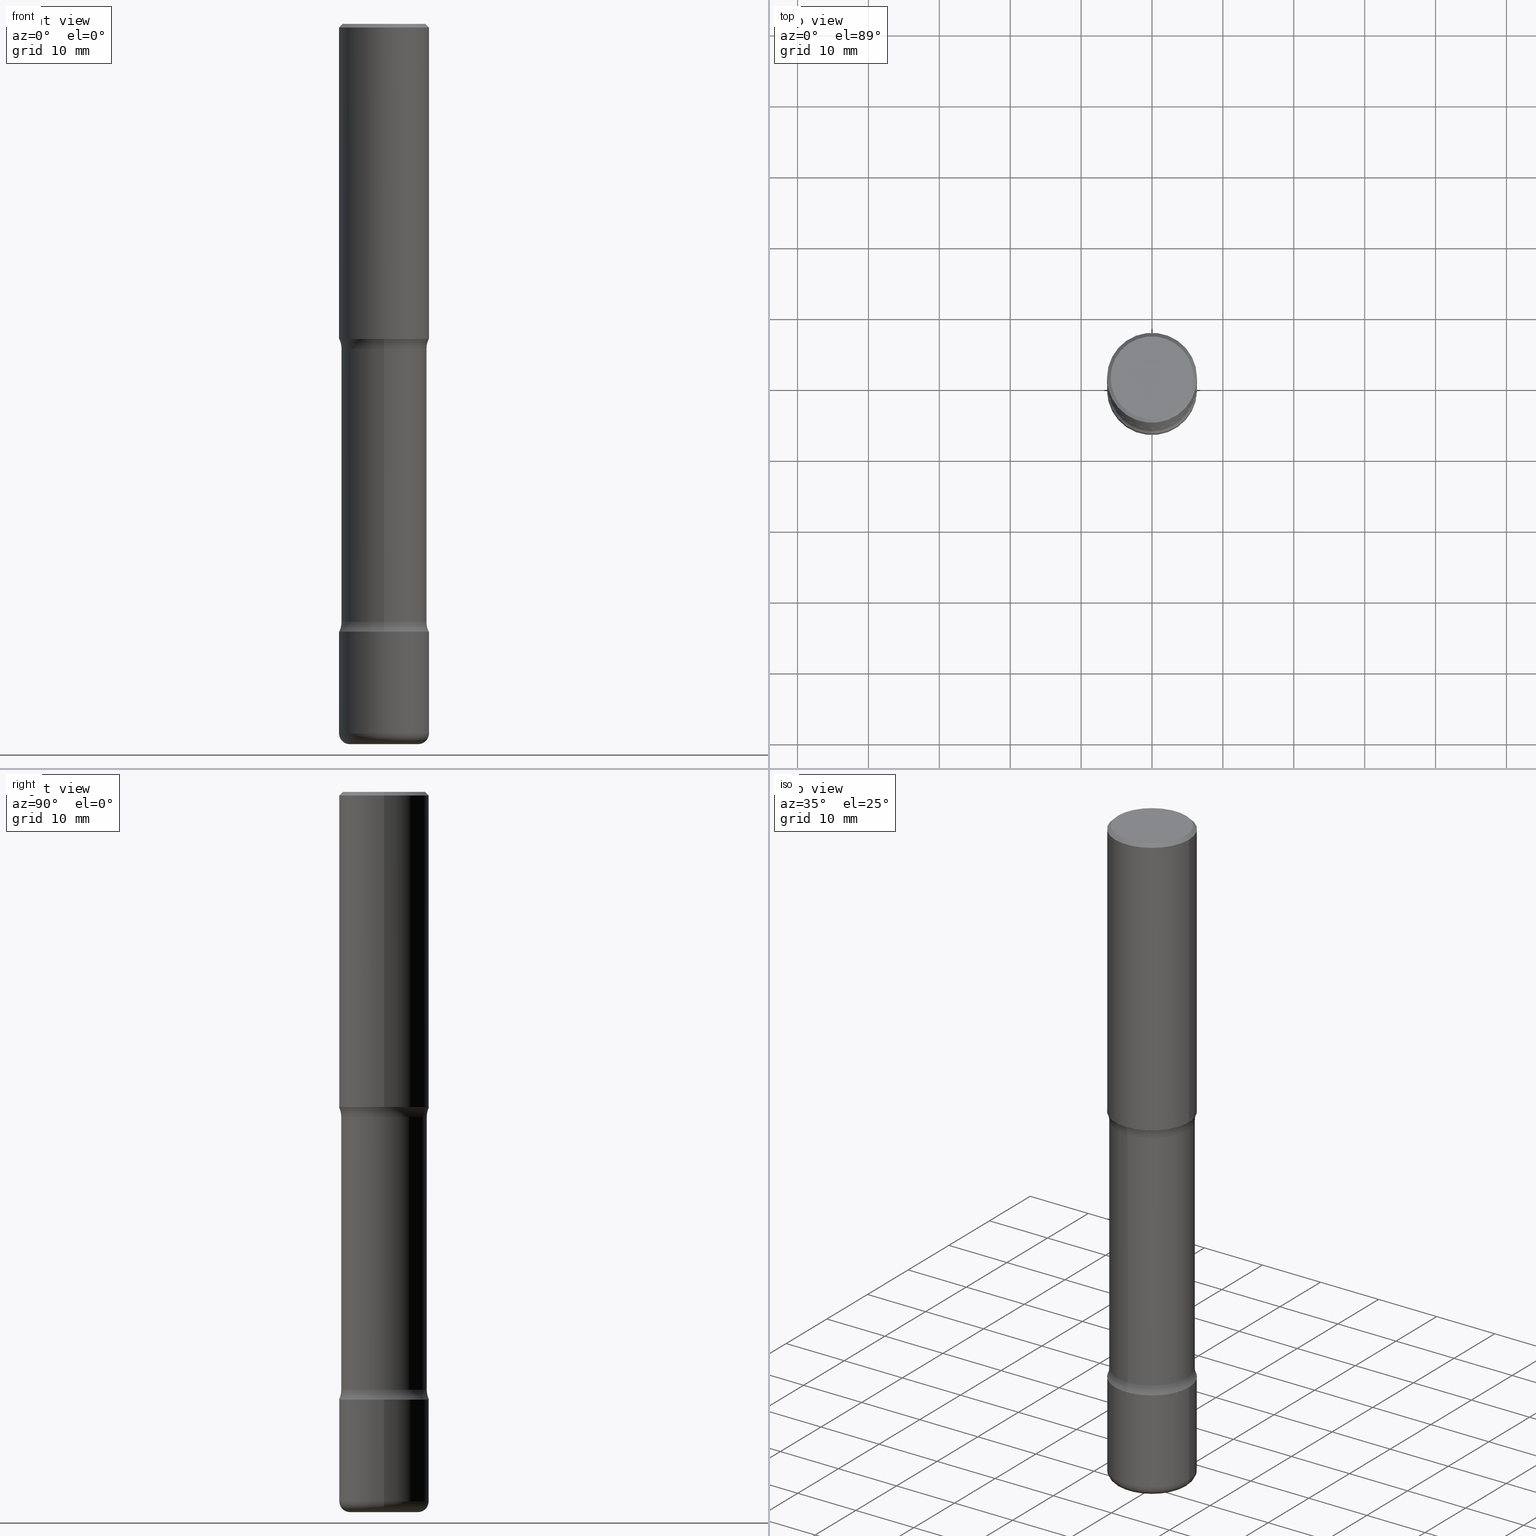
[diagram: canonical four-view strip — front | top / right | iso, engineering-drawing reading convention]
A machine part, canonical four-view strip (front | top / right | iso — engineering-drawing reading convention). The complete STEP part file that produces these views, byte-faithful:
ISO-10303-21;
HEADER;
FILE_DESCRIPTION (( 'STEP AP203' ),
    '1' );
FILE_NAME ('35182.STEP',
    '2024-03-01T23:19:19',
    ( '' ),
    ( '' ),
    'SwSTEP 2.0',
    'SolidWorks 2023',
    '' );
FILE_SCHEMA (( 'CONFIG_CONTROL_DESIGN' ));
ENDSEC;

DATA;
#1 = EDGE_LOOP ( 'NONE', ( #58, #406, #52, #303 ) ) ;
#2 = EDGE_CURVE ( 'NONE', #375, #132, #36, .T. ) ;
#3 = DIRECTION ( 'NONE',  ( -0.7071067811865476838, 2.468850131082258638E-15, -0.7071067811865473507 ) ) ;
#4 = AXIS2_PLACEMENT_3D ( 'NONE', #326, #315, #224 ) ;
#5 = AXIS2_PLACEMENT_3D ( 'NONE', #47, #439, #87 ) ;
#6 = EDGE_LOOP ( 'NONE', ( #139, #399 ) ) ;
#7 = ADVANCED_FACE ( 'NONE', ( #347 ), #184, .T. ) ;
#8 = ORIENTED_EDGE ( 'NONE', *, *, #2, .T. ) ;
#9 = EDGE_CURVE ( 'NONE', #449, #11, #533, .T. ) ;
#10 = FACE_OUTER_BOUND ( 'NONE', #18, .T. ) ;
#11 = VERTEX_POINT ( 'NONE', #395 ) ;
#12 = FACE_OUTER_BOUND ( 'NONE', #306, .T. ) ;
#13 = CIRCLE ( 'NONE', #78, 0.05999999999999994227 ) ;
#14 = DATE_TIME_ROLE ( 'classification_date' ) ;
#15 = DIRECTION ( 'NONE',  ( 2.172837969221398724E-29, -3.881904214558802973E-15, -1.000000000000000000 ) ) ;
#16 = APPROVAL_DATE_TIME ( #97, #194 ) ;
#17 = DIRECTION ( 'NONE',  ( 2.172837969221398724E-29, -3.881904214558802973E-15, -1.000000000000000000 ) ) ;
#18 = EDGE_LOOP ( 'NONE', ( #265, #54 ) ) ;
#19 = DIRECTION ( 'NONE',  ( -1.000000000000000000, 7.105427357600997914E-15, 0.000000000000000000 ) ) ;
#20 = DIRECTION ( 'NONE',  ( 1.000000000000000000, -6.982962677686266711E-15, 4.876176775795935793E-29 ) ) ;
#21 = APPROVAL ( #82, 'UNSPECIFIED' ) ;
#22 = EDGE_LOOP ( 'NONE', ( #46, #85 ) ) ;
#23 = ORIENTED_EDGE ( 'NONE', *, *, #57, .T. ) ;
#24 = AXIS2_PLACEMENT_3D ( 'NONE', #441, #59, #19 ) ;
#25 = VECTOR ( 'NONE', #259, 39.37007874015748143 ) ;
#26 = LINE ( 'NONE', #497, #534 ) ;
#27 = FACE_OUTER_BOUND ( 'NONE', #22, .T. ) ;
#28 = DIRECTION ( 'NONE',  ( 6.982962677686265922E-15, 1.000000000000000000, -3.881904214558802973E-15 ) ) ;
#29 = AXIS2_PLACEMENT_3D ( 'NONE', #456, #112, #378 ) ;
#30 = CIRCLE ( 'NONE', #280, 0.2374999999999999611 ) ;
#31 = DIRECTION ( 'NONE',  ( -1.000000000000000000, 6.982962677686265922E-15, -4.883557194083112901E-29 ) ) ;
#32 = DIRECTION ( 'NONE',  ( 2.172837969221398724E-29, -3.881904214558802973E-15, -1.000000000000000000 ) ) ;
#33 = CARTESIAN_POINT ( 'NONE',  ( 0.1900000000000001132, -1.529268826413297395E-14, -4.000000000000000000 ) ) ;
#34 = EDGE_CURVE ( 'NONE', #449, #313, #264, .T. ) ;
#35 = CARTESIAN_POINT ( 'NONE',  ( 9.635147096369438236E-29, -1.375643647504199401E-14, -3.939999999999999947 ) ) ;
#36 = CIRCLE ( 'NONE', #124, 0.2499999999999996114 ) ;
#37 = ORIENTED_EDGE ( 'NONE', *, *, #422, .F. ) ;
#38 =( NAMED_UNIT ( * ) SI_UNIT ( $, .STERADIAN. ) SOLID_ANGLE_UNIT ( ) );
#39 = VERTEX_POINT ( 'NONE', #61 ) ;
#40 = FACE_OUTER_BOUND ( 'NONE', #411, .T. ) ;
#41 = ORIENTED_EDGE ( 'NONE', *, *, #362, .F. ) ;
#42 = ADVANCED_FACE ( 'NONE', ( #231 ), #433, .F. ) ;
#43 = FACE_OUTER_BOUND ( 'NONE', #426, .T. ) ;
#44 = CIRCLE ( 'NONE', #363, 0.1250000000000001388 ) ;
#45 = LOCAL_TIME ( 18, 19, 19.00000000000000000, #216 ) ;
#46 = ORIENTED_EDGE ( 'NONE', *, *, #116, .T. ) ;
#47 = CARTESIAN_POINT ( 'NONE',  ( 1.606081415867838306E-15, 0.2299999999999995937, -7.966379391987714714E-16 ) ) ;
#48 = VERTEX_POINT ( 'NONE', #410 ) ;
#49 = ADVANCED_FACE ( 'NONE', ( #145 ), #228, .T. ) ;
#50 = DIRECTION ( 'NONE',  ( 1.000000000000000000, -6.982962677686269077E-15, 4.883557194083113462E-29 ) ) ;
#51 = CARTESIAN_POINT ( 'NONE',  ( -1.629368274470639626E-15, -0.2375000000000137834, -3.999999999999998668 ) ) ;
#52 = ORIENTED_EDGE ( 'NONE', *, *, #495, .F. ) ;
#53 = CARTESIAN_POINT ( 'NONE',  ( 4.279570410823987923E-29, -6.110092342975502304E-15, -1.749999999999999334 ) ) ;
#54 = ORIENTED_EDGE ( 'NONE', *, *, #544, .F. ) ;
#55 = AXIS2_PLACEMENT_3D ( 'NONE', #183, #356, #448 ) ;
#56 = CONICAL_SURFACE ( 'NONE', #481, 0.2499999999999996114, 0.7853981633974485010 ) ;
#57 = EDGE_CURVE ( 'NONE', #105, #48, #453, .T. ) ;
#58 = ORIENTED_EDGE ( 'NONE', *, *, #446, .T. ) ;
#59 = DIRECTION ( 'NONE',  ( 7.105427357601001859E-15, 1.000000000000000000, -3.491481338843145583E-15 ) ) ;
#60 = VERTEX_POINT ( 'NONE', #498 ) ;
#61 = CARTESIAN_POINT ( 'NONE',  ( 0.2500000000000000000, -7.855833012397068982E-15, -1.749999999999999334 ) ) ;
#62 = CARTESIAN_POINT ( 'NONE',  ( -1.715124499442830629E-15, -0.2500000000000047184, -1.749999999999998446 ) ) ;
#63 = CARTESIAN_POINT ( 'NONE',  ( 9.781875224740546387E-29, -1.396592535537258233E-14, -4.000000000000000000 ) ) ;
#64 = TOROIDAL_SURFACE ( 'NONE', #193, 0.3625000000000000444, 0.1250000000000001388 ) ;
#65 = AXIS2_PLACEMENT_3D ( 'NONE', #548, #114, #417 ) ;
#66 = ADVANCED_FACE ( 'NONE', ( #359 ), #173, .F. ) ;
#67 = DIRECTION ( 'NONE',  ( -2.445468806185136597E-29, 3.491481338843145583E-15, 1.000000000000000000 ) ) ;
#68 = DIRECTION ( 'NONE',  ( -1.000000000000000000, 6.982962677686265922E-15, -4.883557194083112901E-29 ) ) ;
#69 = DIRECTION ( 'NONE',  ( 2.172837969221398163E-29, -3.881904214558802973E-15, -1.000000000000000000 ) ) ;
#70 = CARTESIAN_POINT ( 'NONE',  ( 4.722595520890061897E-29, -5.475655169937558897E-15, -1.749999999999999334 ) ) ;
#71 = FACE_OUTER_BOUND ( 'NONE', #325, .T. ) ;
#72 = CIRCLE ( 'NONE', #388, 0.2500000000000000000 ) ;
#73 = AXIS2_PLACEMENT_3D ( 'NONE', #427, #208, #384 ) ;
#74 = CARTESIAN_POINT ( 'NONE',  ( -0.1900000000000001132, -1.229798689653506716E-14, -4.000000000000000000 ) ) ;
#75 = ORIENTED_EDGE ( 'NONE', *, *, #334, .F. ) ;
#76 = LENGTH_MEASURE_WITH_UNIT ( LENGTH_MEASURE( 0.02539999999999999897 ), #309 );
#77 = ADVANCED_FACE ( 'NONE', ( #274 ), #64, .F. ) ;
#78 = AXIS2_PLACEMENT_3D ( 'NONE', #418, #376, #240 ) ;
#79 = CIRCLE ( 'NONE', #345, 0.1900000000000001132 ) ;
#80 = PRODUCT_DEFINITION_SHAPE ( 'NONE', 'NONE',  #465 ) ;
#81 = EDGE_LOOP ( 'NONE', ( #210, #126, #527, #476 ) ) ;
#82 = APPROVAL_STATUS ( 'not_yet_approved' ) ;
#83 = CARTESIAN_POINT ( 'NONE',  ( 0.2500000000000000555, -1.745740669421567269E-15, 1.219044193948984228E-29 ) ) ;
#84 = EDGE_CURVE ( 'NONE', #166, #188, #278, .T. ) ;
#85 = ORIENTED_EDGE ( 'NONE', *, *, #291, .T. ) ;
#86 =( NAMED_UNIT ( * ) PLANE_ANGLE_UNIT ( ) SI_UNIT ( $, .RADIAN. ) );
#87 = DIRECTION ( 'NONE',  ( -1.000000000000000000, 6.982962677686265922E-15, -4.876176775795935793E-29 ) ) ;
#88 = ORIENTED_EDGE ( 'NONE', *, *, #143, .F. ) ;
#89 = CARTESIAN_POINT ( 'NONE',  ( 3.102831224040029093E-29, -1.915973910148912659E-14, -3.375000000000000000 ) ) ;
#90 = DIRECTION ( 'NONE',  ( 2.438088387897960049E-29, -3.491481338843145188E-15, -1.000000000000000000 ) ) ;
#91 = CIRCLE ( 'NONE', #479, 0.2500000000000000000 ) ;
#92 = ORIENTED_EDGE ( 'NONE', *, *, #544, .T. ) ;
#93 = CC_DESIGN_DATE_AND_TIME_ASSIGNMENT ( #397, #14, ( #443 ) ) ;
#94 = ADVANCED_BREP_SHAPE_REPRESENTATION ( '35182', ( #474, #293, #471, #73 ), #461 ) ;
#95 = PLANE ( 'NONE',  #492 ) ;
#96 = ORIENTED_EDGE ( 'NONE', *, *, #230, .T. ) ;
#97 = DATE_AND_TIME ( #137, #241 ) ;
#98 = PLANE ( 'NONE',  #185 ) ;
#99 = ORIENTED_EDGE ( 'NONE', *, *, #242, .T. ) ;
#100 = DIRECTION ( 'NONE',  ( -2.445468806185136597E-29, 3.491481338843145583E-15, 1.000000000000000000 ) ) ;
#101 = PLANE ( 'NONE',  #402 ) ;
#102 = ADVANCED_FACE ( 'NONE', ( #140 ), #487, .T. ) ;
#103 = VECTOR ( 'NONE', #333, 39.37007874015748143 ) ;
#104 = CIRCLE ( 'NONE', #203, 0.1250000000000000278 ) ;
#105 = VERTEX_POINT ( 'NONE', #405 ) ;
#106 = DIRECTION ( 'NONE',  ( 1.000000000000000000, -6.982962677686266711E-15, 4.875813741439108182E-29 ) ) ;
#107 = ORIENTED_EDGE ( 'NONE', *, *, #393, .F. ) ;
#108 = DIRECTION ( 'NONE',  ( 2.172837969221398724E-29, -3.881904214558802973E-15, -1.000000000000000000 ) ) ;
#109 = AXIS2_PLACEMENT_3D ( 'NONE', #447, #100, #267 ) ;
#110 = AXIS2_PLACEMENT_3D ( 'NONE', #111, #31, #355 ) ;
#111 = CARTESIAN_POINT ( 'NONE',  ( 2.531323970661315070E-15, 0.3624999999999936051, -1.804486236794259124 ) ) ;
#112 = DIRECTION ( 'NONE',  ( -2.445468806185136597E-29, 3.491481338843145583E-15, 1.000000000000000000 ) ) ;
#113 = EDGE_CURVE ( 'NONE', #166, #217, #423, .T. ) ;
#114 = DIRECTION ( 'NONE',  ( -2.445468806185136597E-29, 3.491481338843145583E-15, 1.000000000000000000 ) ) ;
#115 = DIRECTION ( 'NONE',  ( -2.445468806185136877E-29, 3.491481338843145188E-15, 1.000000000000000000 ) ) ;
#116 = EDGE_CURVE ( 'NONE', #496, #348, #499, .T. ) ;
#117 = CARTESIAN_POINT ( 'NONE',  ( 8.135067456768282338E-29, -1.157223916634853388E-14, -3.320513763205740876 ) ) ;
#118 = AXIS2_PLACEMENT_3D ( 'NONE', #371, #545, #148 ) ;
#119 = AXIS2_PLACEMENT_3D ( 'NONE', #335, #331, #503 ) ;
#120 = PLANE ( 'NONE',  #118 ) ;
#121 = FACE_OUTER_BOUND ( 'NONE', #129, .T. ) ;
#122 = ORIENTED_EDGE ( 'NONE', *, *, #422, .T. ) ;
#123 = APPROVAL_STATUS ( 'not_yet_approved' ) ;
#124 = AXIS2_PLACEMENT_3D ( 'NONE', #440, #238, #551 ) ;
#125 = CC_DESIGN_APPROVAL ( #321, ( #226 ) ) ;
#126 = ORIENTED_EDGE ( 'NONE', *, *, #446, .F. ) ;
#127 = PERSON_AND_ORGANIZATION ( #421, #234 ) ;
#128 = LINE ( 'NONE', #485, #312 ) ;
#129 = EDGE_LOOP ( 'NONE', ( #381, #96, #204, #159 ) ) ;
#130 = PERSON_AND_ORGANIZATION ( #421, #234 ) ;
#131 = CARTESIAN_POINT ( 'NONE',  ( 0.2500000000000000000, -1.352949018801718119E-14, -3.375000000000000000 ) ) ;
#132 = VERTEX_POINT ( 'NONE', #502 ) ;
#133 = PERSON_AND_ORGANIZATION_ROLE ( 'classification_officer' ) ;
#134 = DIRECTION ( 'NONE',  ( 1.000000000000000000, -6.860497997771530774E-15, 4.836017578373552280E-29 ) ) ;
#135 = DIRECTION ( 'NONE',  ( -2.445468806185136597E-29, 3.491481338843145583E-15, 1.000000000000000000 ) ) ;
#136 = CIRCLE ( 'NONE', #546, 0.2500000000000000000 ) ;
#137 = CALENDAR_DATE ( 2024, 1, 3 ) ;
#138 = CARTESIAN_POINT ( 'NONE',  ( -1.672246386956758004E-15, -0.2375000000000049849, -1.804486236794257126 ) ) ;
#139 = ORIENTED_EDGE ( 'NONE', *, *, #458, .F. ) ;
#140 = FACE_OUTER_BOUND ( 'NONE', #396, .T. ) ;
#141 = CARTESIAN_POINT ( 'NONE',  ( 4.890937612370273159E-31, -6.982962677686291609E-17, -0.02000000000000000042 ) ) ;
#142 = DIRECTION ( 'NONE',  ( 6.982962677686265922E-15, 1.000000000000000000, -4.370956789862821150E-15 ) ) ;
#143 = EDGE_CURVE ( 'NONE', #532, #536, #136, .T. ) ;
#144 = AXIS2_PLACEMENT_3D ( 'NONE', #235, #191, #370 ) ;
#145 = FACE_OUTER_BOUND ( 'NONE', #1, .T. ) ;
#146 = ADVANCED_FACE ( 'NONE', ( #243 ), #286, .T. ) ;
#147 = DIRECTION ( 'NONE',  ( 1.000000000000000000, -6.982962677686267499E-15, 0.000000000000000000 ) ) ;
#148 = DIRECTION ( 'NONE',  ( -6.982962677686265922E-15, -1.000000000000000000, 3.881904214558802973E-15 ) ) ;
#149 = VECTOR ( 'NONE', #115, 39.37007874015748143 ) ;
#150 = DIRECTION ( 'NONE',  ( 6.982962677686265922E-15, 1.000000000000000000, -4.370956789862821150E-15 ) ) ;
#151 = DATE_AND_TIME ( #560, #165 ) ;
#152 = EDGE_CURVE ( 'NONE', #132, #375, #270, .T. ) ;
#153 = DIMENSIONAL_EXPONENTS ( 1.000000000000000000, 0.000000000000000000, 0.000000000000000000, 0.000000000000000000, 0.000000000000000000, 0.000000000000000000, 0.000000000000000000 ) ;
#154 = CARTESIAN_POINT ( 'NONE',  ( 4.890937612370273159E-31, -6.982962677686291609E-17, -0.02000000000000000042 ) ) ;
#155 = CARTESIAN_POINT ( 'NONE',  ( -0.2500000000000001110, -1.198007963564174355E-14, -3.939999999999999947 ) ) ;
#156 = AXIS2_PLACEMENT_3D ( 'NONE', #436, #263, #213 ) ;
#157 = CYLINDRICAL_SURFACE ( 'NONE', #212, 0.2500000000000000555 ) ;
#158 = PERSON_AND_ORGANIZATION ( #421, #234 ) ;
#159 = ORIENTED_EDGE ( 'NONE', *, *, #253, .F. ) ;
#160 = EDGE_LOOP ( 'NONE', ( #107, #486 ) ) ;
#161 = EDGE_CURVE ( 'NONE', #188, #437, #13, .T. ) ;
#162 = CALENDAR_DATE ( 2024, 1, 3 ) ;
#163 = CIRCLE ( 'NONE', #196, 0.2500000000000001110 ) ;
#164 = DIRECTION ( 'NONE',  ( -2.438088387897960049E-29, 3.491481338843145188E-15, 1.000000000000000000 ) ) ;
#165 = LOCAL_TIME ( 18, 19, 19.00000000000000000, #340 ) ;
#166 = VERTEX_POINT ( 'NONE', #74 ) ;
#167 = DIRECTION ( 'NONE',  ( 2.172837969221398724E-29, -3.881904214558802973E-15, -1.000000000000000000 ) ) ;
#168 = ORIENTED_EDGE ( 'NONE', *, *, #34, .F. ) ;
#169 = DIRECTION ( 'NONE',  ( 2.438088387897960049E-29, -3.491481338843145188E-15, -1.000000000000000000 ) ) ;
#170 = CARTESIAN_POINT ( 'NONE',  ( 1.745740669421649114E-15, 0.2499999999999882594, -3.375000000000000888 ) ) ;
#171 = ORIENTED_EDGE ( 'NONE', *, *, #175, .T. ) ;
#172 = FACE_OUTER_BOUND ( 'NONE', #6, .T. ) ;
#173 = TOROIDAL_SURFACE ( 'NONE', #310, 0.3624999999999992673, 0.1250000000000000278 ) ;
#174 = AXIS2_PLACEMENT_3D ( 'NONE', #256, #525, #431 ) ;
#175 = EDGE_CURVE ( 'NONE', #437, #217, #299, .T. ) ;
#176 = COORDINATED_UNIVERSAL_TIME_OFFSET ( 5, 0, .BEHIND. ) ;
#177 = CARTESIAN_POINT ( 'NONE',  ( -3.131554243005659264E-46, 4.471029511141341874E-32, 1.280553747030123384E-17 ) ) ;
#178 = LINE ( 'NONE', #307, #322 ) ;
#179 = APPLICATION_CONTEXT ( 'configuration controlled 3d designs of mechanical parts and assemblies' ) ;
#180 = ORIENTED_EDGE ( 'NONE', *, *, #113, .T. ) ;
#181 = CARTESIAN_POINT ( 'NONE',  ( 8.253457220874836014E-29, -1.178374951859561452E-14, -3.375000000000000000 ) ) ;
#182 = EDGE_CURVE ( 'NONE', #39, #375, #511, .T. ) ;
#183 = CARTESIAN_POINT ( 'NONE',  ( 4.840985284996614452E-29, -5.687165522184640323E-15, -1.804486236794258014 ) ) ;
#184 = CYLINDRICAL_SURFACE ( 'NONE', #467, 0.2499999999999998057 ) ;
#185 = AXIS2_PLACEMENT_3D ( 'NONE', #53, #164, #482 ) ;
#186 = APPROVAL_STATUS ( 'not_yet_approved' ) ;
#187 = CC_DESIGN_PERSON_AND_ORGANIZATION_ASSIGNMENT ( #528, #484, ( #226 ) ) ;
#188 = VERTEX_POINT ( 'NONE', #33 ) ;
#189 = DIRECTION ( 'NONE',  ( 6.982962677686265922E-15, 1.000000000000000000, -3.881904214558802973E-15 ) ) ;
#190 = COORDINATED_UNIVERSAL_TIME_OFFSET ( 5, 0, .BEHIND. ) ;
#191 = DIRECTION ( 'NONE',  ( 2.172837969221398724E-29, -3.881904214558802973E-15, -1.000000000000000000 ) ) ;
#192 = DIRECTION ( 'NONE',  ( 6.860497997771529985E-15, 1.000000000000000000, 0.000000000000000000 ) ) ;
#193 = AXIS2_PLACEMENT_3D ( 'NONE', #318, #451, #369 ) ;
#194 = APPROVAL ( #186, 'UNSPECIFIED' ) ;
#195 = CARTESIAN_POINT ( 'NONE',  ( -1.672246386956728816E-15, -0.2375000000000115352, -3.320513763205739988 ) ) ;
#196 = AXIS2_PLACEMENT_3D ( 'NONE', #35, #67, #557 ) ;
#197 = LOCAL_TIME ( 18, 19, 19.00000000000000000, #220 ) ;
#198 = DIRECTION ( 'NONE',  ( -6.982962677686266711E-15, -1.000000000000000000, 0.000000000000000000 ) ) ;
#199 = CARTESIAN_POINT ( 'NONE',  ( 0.000000000000000000, 0.000000000000000000, 0.000000000000000000 ) ) ;
#200 = DIRECTION ( 'NONE',  ( 1.000000000000000000, -6.982962677686267499E-15, 0.000000000000000000 ) ) ;
#201 = DIRECTION ( 'NONE',  ( 6.982962677686265133E-15, 1.000000000000000000, -4.601007147224022844E-15 ) ) ;
#202 = AXIS2_PLACEMENT_3D ( 'NONE', #328, #15, #494 ) ;
#203 = AXIS2_PLACEMENT_3D ( 'NONE', #529, #134, #296 ) ;
#204 = ORIENTED_EDGE ( 'NONE', *, *, #542, .T. ) ;
#205 = APPLICATION_PROTOCOL_DEFINITION ( 'international standard', 'config_control_design', 1994, #290 ) ;
#206 = ADVANCED_FACE ( 'NONE', ( #121 ), #505, .T. ) ;
#207 = ORIENTED_EDGE ( 'NONE', *, *, #57, .F. ) ;
#208 = DIRECTION ( 'NONE',  ( 0.000000000000000000, 0.000000000000000000, 1.000000000000000000 ) ) ;
#209 = DIRECTION ( 'NONE',  ( 6.982962677686266711E-15, 1.000000000000000000, -4.601007147224030733E-15 ) ) ;
#210 = ORIENTED_EDGE ( 'NONE', *, *, #558, .F. ) ;
#211 = CC_DESIGN_PERSON_AND_ORGANIZATION_ASSIGNMENT ( #298, #223, ( #226 ) ) ;
#212 = AXIS2_PLACEMENT_3D ( 'NONE', #199, #287, #552 ) ;
#213 = DIRECTION ( 'NONE',  ( 6.982962677686266711E-15, 1.000000000000000000, -3.450755360418027783E-15 ) ) ;
#214 = APPROVAL_PERSON_ORGANIZATION ( #289, #321, #514 ) ;
#215 = ORIENTED_EDGE ( 'NONE', *, *, #152, .F. ) ;
#216 = COORDINATED_UNIVERSAL_TIME_OFFSET ( 5, 0, .BEHIND. ) ;
#217 = VERTEX_POINT ( 'NONE', #155 ) ;
#218 = CARTESIAN_POINT ( 'NONE',  ( 9.781875224740546387E-29, -1.396592535537258233E-14, -4.000000000000000000 ) ) ;
#219 = EDGE_LOOP ( 'NONE', ( #229, #466, #261, #445 ) ) ;
#220 = COORDINATED_UNIVERSAL_TIME_OFFSET ( 5, 0, .BEHIND. ) ;
#221 = DIRECTION ( 'NONE',  ( 1.000000000000000000, -6.982962677686266711E-15, 0.000000000000000000 ) ) ;
#222 = EDGE_LOOP ( 'NONE', ( #522, #493, #99, #41 ) ) ;
#223 = PERSON_AND_ORGANIZATION_ROLE ( 'design_supplier' ) ;
#224 = DIRECTION ( 'NONE',  ( 6.982962677686266711E-15, 1.000000000000000000, -4.601007147224030733E-15 ) ) ;
#225 = CARTESIAN_POINT ( 'NONE',  ( 8.135067456768282338E-29, -1.157223916634853388E-14, -3.320513763205740876 ) ) ;
#226 = PRODUCT_DEFINITION_FORMATION_WITH_SPECIFIED_SOURCE ( 'ANY', '', #249, .NOT_KNOWN. ) ;
#227 = EDGE_LOOP ( 'NONE', ( #254, #351, #273, #539 ) ) ;
#228 = CYLINDRICAL_SURFACE ( 'NONE', #4, 0.2374999999999995726 ) ;
#229 = ORIENTED_EDGE ( 'NONE', *, *, #113, .F. ) ;
#230 = EDGE_CURVE ( 'NONE', #217, #437, #163, .T. ) ;
#231 = FACE_OUTER_BOUND ( 'NONE', #222, .T. ) ;
#232 = AXIS2_PLACEMENT_3D ( 'NONE', #457, #69, #28 ) ;
#233 = EDGE_LOOP ( 'NONE', ( #483, #490, #297, #517 ) ) ;
#234 = ORGANIZATION ( 'UNSPECIFIED', 'UNSPECIFIED', '' ) ;
#235 = CARTESIAN_POINT ( 'NONE',  ( 4.722595520890061897E-29, -5.475655169937558897E-15, -1.749999999999999334 ) ) ;
#236 = DIRECTION ( 'NONE',  ( 1.000000000000000000, -6.860497997771530774E-15, 4.836017578373552280E-29 ) ) ;
#237 = CARTESIAN_POINT ( 'NONE',  ( 1.658453635950569005E-15, 0.2374999999999883871, -3.320513763205742208 ) ) ;
#238 = DIRECTION ( 'NONE',  ( -2.445468806185136597E-29, 3.491481338843145583E-15, 1.000000000000000000 ) ) ;
#239 = AXIS2_PLACEMENT_3D ( 'NONE', #181, #540, #142 ) ;
#240 = DIRECTION ( 'NONE',  ( 1.000000000000000000, -6.982962677686274599E-15, 0.000000000000000000 ) ) ;
#241 = LOCAL_TIME ( 18, 19, 19.00000000000000000, #190 ) ;
#242 = EDGE_CURVE ( 'NONE', #313, #308, #491, .T. ) ;
#243 = FACE_OUTER_BOUND ( 'NONE', #424, .T. ) ;
#244 = DIRECTION ( 'NONE',  ( -2.445468806185136597E-29, 3.491481338843145583E-15, 1.000000000000000000 ) ) ;
#245 = CC_DESIGN_DATE_AND_TIME_ASSIGNMENT ( #151, #506, ( #465 ) ) ;
#246 = EDGE_LOOP ( 'NONE', ( #361, #387, #8, #37 ) ) ;
#247 = AXIS2_PLACEMENT_3D ( 'NONE', #553, #460, #464 ) ;
#248 = CIRCLE ( 'NONE', #65, 0.2299999999999995937 ) ;
#249 = PRODUCT ( '35182', '35182', '', ( #382 ) ) ;
#250 = ORIENTED_EDGE ( 'NONE', *, *, #175, .F. ) ;
#251 = CALENDAR_DATE ( 2024, 1, 3 ) ;
#252 = DIRECTION ( 'NONE',  ( -2.445468806185136597E-29, 3.491481338843145583E-15, 1.000000000000000000 ) ) ;
#253 = EDGE_CURVE ( 'NONE', #536, #532, #72, .T. ) ;
#254 = ORIENTED_EDGE ( 'NONE', *, *, #282, .F. ) ;
#255 = SHAPE_DEFINITION_REPRESENTATION ( #80, #94 ) ;
#256 = CARTESIAN_POINT ( 'NONE',  ( 4.890937612370273159E-31, -6.982962677686291609E-17, -0.02000000000000000042 ) ) ;
#257 = ORIENTED_EDGE ( 'NONE', *, *, #9, .T. ) ;
#258 = AXIS2_PLACEMENT_3D ( 'NONE', #63, #543, #147 ) ;
#259 = DIRECTION ( 'NONE',  ( 2.172837969221398724E-29, -3.881904214558802973E-15, -1.000000000000000000 ) ) ;
#260 = AXIS2_PLACEMENT_3D ( 'NONE', #346, #314, #221 ) ;
#261 = ORIENTED_EDGE ( 'NONE', *, *, #161, .T. ) ;
#262 = PRODUCT_RELATED_PRODUCT_CATEGORY ( 'detail', '', ( #249 ) ) ;
#263 = DIRECTION ( 'NONE',  ( 2.172837969221398724E-29, -3.881904214558802973E-15, -1.000000000000000000 ) ) ;
#264 = LINE ( 'NONE', #51, #400 ) ;
#265 = ORIENTED_EDGE ( 'NONE', *, *, #452, .F. ) ;
#266 = DIRECTION ( 'NONE',  ( 1.000000000000000000, -6.982962677686267499E-15, 0.000000000000000000 ) ) ;
#267 = DIRECTION ( 'NONE',  ( 1.000000000000000000, -6.982962677686266711E-15, 4.876176775795935793E-29 ) ) ;
#268 = UNCERTAINTY_MEASURE_WITH_UNIT (LENGTH_MEASURE( 1.000000000000000082E-05 ), #390, 'distance_accuracy_value', 'NONE');
#269 = DIRECTION ( 'NONE',  ( 2.445468806185136597E-29, -3.491481338843145583E-15, -1.000000000000000000 ) ) ;
#270 = CIRCLE ( 'NONE', #442, 0.2499999999999996114 ) ;
#271 = CIRCLE ( 'NONE', #260, 0.2500000000000000000 ) ;
#272 = TOROIDAL_SURFACE ( 'NONE', #119, 0.3624999999999992673, 0.1250000000000000278 ) ;
#273 = ORIENTED_EDGE ( 'NONE', *, *, #362, .T. ) ;
#274 = FACE_OUTER_BOUND ( 'NONE', #227, .T. ) ;
#275 = ADVANCED_FACE ( 'NONE', ( #71 ), #157, .T. ) ;
#276 = ORIENTED_EDGE ( 'NONE', *, *, #542, .F. ) ;
#277 = APPROVAL_ROLE ( '' ) ;
#278 = CIRCLE ( 'NONE', #258, 0.1900000000000001132 ) ;
#279 = FACE_OUTER_BOUND ( 'NONE', #324, .T. ) ;
#280 = AXIS2_PLACEMENT_3D ( 'NONE', #225, #17, #360 ) ;
#281 = FACE_OUTER_BOUND ( 'NONE', #160, .T. ) ;
#282 = EDGE_CURVE ( 'NONE', #348, #313, #44, .T. ) ;
#283 = ADVANCED_FACE ( 'NONE', ( #27 ), #120, .F. ) ;
#284 = CARTESIAN_POINT ( 'NONE',  ( 8.253457220874836014E-29, -1.178374951859561452E-14, -3.375000000000000000 ) ) ;
#285 = DIRECTION ( 'NONE',  ( 2.172837969221398724E-29, -3.881904214558802973E-15, -1.000000000000000000 ) ) ;
#286 = TOROIDAL_SURFACE ( 'NONE', #247, 0.1900000000000001132, 0.05999999999999995615 ) ;
#287 = DIRECTION ( 'NONE',  ( -2.445468806185136597E-29, 3.491481338843145583E-15, 1.000000000000000000 ) ) ;
#288 = CIRCLE ( 'NONE', #454, 0.2500000000000000000 ) ;
#289 = PERSON_AND_ORGANIZATION ( #421, #234 ) ;
#290 = APPLICATION_CONTEXT ( 'configuration controlled 3d designs of mechanical parts and assemblies' ) ;
#291 = EDGE_CURVE ( 'NONE', #348, #496, #91, .T. ) ;
#292 = DIRECTION ( 'NONE',  ( 1.000000000000000000, -6.982962677686262766E-15, 0.000000000000000000 ) ) ;
#293 = MANIFOLD_SOLID_BREP ( 'Body-Move/Copy2[2]', #515 ) ;
#294 = ORIENTED_EDGE ( 'NONE', *, *, #253, .T. ) ;
#295 = PERSON_AND_ORGANIZATION_ROLE ( 'creator' ) ;
#296 = DIRECTION ( 'NONE',  ( 6.860497997771529985E-15, 1.000000000000000000, 0.000000000000000000 ) ) ;
#297 = ORIENTED_EDGE ( 'NONE', *, *, #2, .F. ) ;
#298 = PERSON_AND_ORGANIZATION ( #421, #234 ) ;
#299 = CIRCLE ( 'NONE', #408, 0.2500000000000001110 ) ;
#300 = AXIS2_PLACEMENT_3D ( 'NONE', #70, #285, #501 ) ;
#301 = ADVANCED_FACE ( 'NONE', ( #281 ), #373, .F. ) ;
#302 = CARTESIAN_POINT ( 'NONE',  ( 9.611480951638210847E-29, -1.420993965269486716E-14, -4.000000000000000000 ) ) ;
#303 = ORIENTED_EDGE ( 'NONE', *, *, #463, .F. ) ;
#304 = APPROVAL_ROLE ( '' ) ;
#305 = CARTESIAN_POINT ( 'NONE',  ( 1.658453635950581429E-15, 0.2374999999999853895, -4.000000000000000888 ) ) ;
#306 = EDGE_LOOP ( 'NONE', ( #23, #468 ) ) ;
#307 = CARTESIAN_POINT ( 'NONE',  ( -0.2500000000000000555, 1.776356839400250859E-15, -1.229733772563726866E-29 ) ) ;
#308 = VERTEX_POINT ( 'NONE', #237 ) ;
#309 =( LENGTH_UNIT ( ) NAMED_UNIT ( * ) SI_UNIT ( $, .METRE. ) );
#310 = AXIS2_PLACEMENT_3D ( 'NONE', #450, #108, #189 ) ;
#311 = CARTESIAN_POINT ( 'NONE',  ( 4.279570410823987923E-29, -6.110092342975502304E-15, -1.749999999999999334 ) ) ;
#312 = VECTOR ( 'NONE', #3, 39.37007874015748143 ) ;
#313 = VERTEX_POINT ( 'NONE', #195 ) ;
#314 = DIRECTION ( 'NONE',  ( -2.445468806185136597E-29, 3.491481338843145583E-15, 1.000000000000000000 ) ) ;
#315 = DIRECTION ( 'NONE',  ( 2.172837969221398724E-29, -3.881904214558802973E-15, -1.000000000000000000 ) ) ;
#316 = DIRECTION ( 'NONE',  ( -1.000000000000000000, 6.982962677686267499E-15, 0.000000000000000000 ) ) ;
#317 = ORIENTED_EDGE ( 'NONE', *, *, #463, .T. ) ;
#318 = CARTESIAN_POINT ( 'NONE',  ( 8.120212828428058665E-29, -1.159351183960467319E-14, -3.320513763205740876 ) ) ;
#319 = APPLICATION_PROTOCOL_DEFINITION ( 'international standard', 'config_control_design', 1994, #179 ) ;
#320 = AXIS2_PLACEMENT_3D ( 'NONE', #117, #32, #201 ) ;
#321 = APPROVAL ( #123, 'UNSPECIFIED' ) ;
#322 = VECTOR ( 'NONE', #394, 39.37007874015748143 ) ;
#323 = DIRECTION ( 'NONE',  ( -2.445468806185136597E-29, 3.491481338843145583E-15, 1.000000000000000000 ) ) ;
#324 = EDGE_LOOP ( 'NONE', ( #432, #358, #341, #392 ) ) ;
#325 = EDGE_LOOP ( 'NONE', ( #171, #472, #88, #276 ) ) ;
#326 = CARTESIAN_POINT ( 'NONE',  ( 9.611480951638210847E-29, -1.420993965269486716E-14, -4.000000000000000000 ) ) ;
#327 = CC_DESIGN_PERSON_AND_ORGANIZATION_ASSIGNMENT ( #130, #133, ( #443 ) ) ;
#328 = CARTESIAN_POINT ( 'NONE',  ( 8.120212828428058665E-29, -1.159351183960467319E-14, -3.320513763205740876 ) ) ;
#329 = CLOSED_SHELL ( 'NONE', ( #49, #42, #357, #66, #301, #283, #77, #526 ) ) ;
#330 = DIRECTION ( 'NONE',  ( 2.172837969221398724E-29, -3.881904214558802973E-15, -1.000000000000000000 ) ) ;
#331 = DIRECTION ( 'NONE',  ( 2.172837969221398724E-29, -3.881904214558802973E-15, -1.000000000000000000 ) ) ;
#332 = CARTESIAN_POINT ( 'NONE',  ( -0.2499999999999998057, 1.776356839400249084E-15, -1.229733772563725465E-29 ) ) ;
#333 = DIRECTION ( 'NONE',  ( -2.445468806185136877E-29, 3.491481338843145188E-15, 1.000000000000000000 ) ) ;
#334 = EDGE_CURVE ( 'NONE', #60, #132, #549, .T. ) ;
#335 = CARTESIAN_POINT ( 'NONE',  ( 4.842033636340329994E-29, -5.685664223391985345E-15, -1.804486236794257792 ) ) ;
#336 = DIRECTION ( 'NONE',  ( -2.445468806185136597E-29, 3.491481338843145583E-15, 1.000000000000000000 ) ) ;
#337 = CONICAL_SURFACE ( 'NONE', #174, 0.2499999999999996114, 0.7853981633974485010 ) ;
#338 = CC_DESIGN_APPROVAL ( #21, ( #443 ) ) ;
#339 = CARTESIAN_POINT ( 'NONE',  ( 9.635147096369438236E-29, -1.375643647504199401E-14, -3.939999999999999947 ) ) ;
#340 = COORDINATED_UNIVERSAL_TIME_OFFSET ( 5, 0, .BEHIND. ) ;
#341 = ORIENTED_EDGE ( 'NONE', *, *, #377, .T. ) ;
#342 = EDGE_LOOP ( 'NONE', ( #559, #294 ) ) ;
#343 = ORIENTED_EDGE ( 'NONE', *, *, #182, .T. ) ;
#344 = APPROVAL_DATE_TIME ( #523, #321 ) ;
#345 = AXIS2_PLACEMENT_3D ( 'NONE', #350, #135, #266 ) ;
#346 = CARTESIAN_POINT ( 'NONE',  ( 4.279570410823987923E-29, -6.110092342975502304E-15, -1.749999999999999334 ) ) ;
#347 = FACE_OUTER_BOUND ( 'NONE', #233, .T. ) ;
#348 = VERTEX_POINT ( 'NONE', #414 ) ;
#349 = SECURITY_CLASSIFICATION_LEVEL ( 'unclassified' ) ;
#350 = CARTESIAN_POINT ( 'NONE',  ( 9.781875224740546387E-29, -1.396592535537258233E-14, -4.000000000000000000 ) ) ;
#351 = ORIENTED_EDGE ( 'NONE', *, *, #116, .F. ) ;
#352 = DIRECTION ( 'NONE',  ( -1.000000000000000000, 6.982962677686265922E-15, -4.876176775795935793E-29 ) ) ;
#353 = DIRECTION ( 'NONE',  ( -2.445468806185136877E-29, 3.491481338843145188E-15, 1.000000000000000000 ) ) ;
#354 = ORIENTED_EDGE ( 'NONE', *, *, #458, .T. ) ;
#355 = DIRECTION ( 'NONE',  ( -6.982962677686265133E-15, -1.000000000000000000, 0.000000000000000000 ) ) ;
#356 = DIRECTION ( 'NONE',  ( 2.172837969221398724E-29, -3.881904214558802973E-15, -1.000000000000000000 ) ) ;
#357 = ADVANCED_FACE ( 'NONE', ( #279 ), #272, .F. ) ;
#358 = ORIENTED_EDGE ( 'NONE', *, *, #558, .T. ) ;
#359 = FACE_OUTER_BOUND ( 'NONE', #81, .T. ) ;
#360 = DIRECTION ( 'NONE',  ( 6.982962677686265133E-15, 1.000000000000000000, -4.601007147224022844E-15 ) ) ;
#361 = ORIENTED_EDGE ( 'NONE', *, *, #367, .F. ) ;
#362 = EDGE_CURVE ( 'NONE', #496, #308, #389, .T. ) ;
#363 = AXIS2_PLACEMENT_3D ( 'NONE', #510, #236, #192 ) ;
#364 = AXIS2_PLACEMENT_3D ( 'NONE', #302, #167, #209 ) ;
#365 = ORIENTED_EDGE ( 'NONE', *, *, #152, .T. ) ;
#366 = DIRECTION ( 'NONE',  ( 2.172837969221398724E-29, -3.881904214558802973E-15, -1.000000000000000000 ) ) ;
#367 = EDGE_CURVE ( 'NONE', #48, #105, #248, .T. ) ;
#368 = ORIENTED_EDGE ( 'NONE', *, *, #385, .F. ) ;
#369 = DIRECTION ( 'NONE',  ( 6.982962677686265922E-15, 1.000000000000000000, -3.881904214558802973E-15 ) ) ;
#370 = DIRECTION ( 'NONE',  ( 6.982962677686265922E-15, 1.000000000000000000, -4.370956789862832194E-15 ) ) ;
#371 = CARTESIAN_POINT ( 'NONE',  ( 3.102831224040029093E-29, -1.915973910148912659E-14, -3.375000000000000000 ) ) ;
#372 = CC_DESIGN_APPROVAL ( #194, ( #465 ) ) ;
#373 = PLANE ( 'NONE',  #232 ) ;
#374 = DESIGN_CONTEXT ( 'detailed design', #179, 'design' ) ;
#375 = VERTEX_POINT ( 'NONE', #509 ) ;
#376 = DIRECTION ( 'NONE',  ( -6.982962677686266711E-15, -1.000000000000000000, 3.491481338843145583E-15 ) ) ;
#377 = EDGE_CURVE ( 'NONE', #383, #512, #547, .T. ) ;
#378 = DIRECTION ( 'NONE',  ( 1.000000000000000000, -6.982962677686267499E-15, 4.876176775795935793E-29 ) ) ;
#379 = DIRECTION ( 'NONE',  ( 1.000000000000000000, -6.982962677686262766E-15, 0.000000000000000000 ) ) ;
#380 = VECTOR ( 'NONE', #353, 39.37007874015748143 ) ;
#381 = ORIENTED_EDGE ( 'NONE', *, *, #513, .F. ) ;
#382 = MECHANICAL_CONTEXT ( 'NONE', #290, 'mechanical' ) ;
#383 = VERTEX_POINT ( 'NONE', #62 ) ;
#384 = DIRECTION ( 'NONE',  ( 1.000000000000000000, 0.000000000000000000, 0.000000000000000000 ) ) ;
#385 = EDGE_CURVE ( 'NONE', #48, #375, #26, .T. ) ;
#386 = CARTESIAN_POINT ( 'NONE',  ( 9.635147096369438236E-29, -1.375643647504199401E-14, -3.939999999999999947 ) ) ;
#387 = ORIENTED_EDGE ( 'NONE', *, *, #385, .T. ) ;
#388 = AXIS2_PLACEMENT_3D ( 'NONE', #284, #336, #379 ) ;
#389 = CIRCLE ( 'NONE', #409, 0.1250000000000001388 ) ;
#390 =( CONVERSION_BASED_UNIT ( 'INCH', #76 ) LENGTH_UNIT ( ) NAMED_UNIT ( #153 ) );
#391 = CYLINDRICAL_SURFACE ( 'NONE', #364, 0.2374999999999995726 ) ;
#392 = ORIENTED_EDGE ( 'NONE', *, *, #415, .F. ) ;
#393 = EDGE_CURVE ( 'NONE', #512, #383, #556, .T. ) ;
#394 = DIRECTION ( 'NONE',  ( -2.445468806185136877E-29, 3.491481338843145188E-15, 1.000000000000000000 ) ) ;
#395 = CARTESIAN_POINT ( 'NONE',  ( 1.658453635950531534E-15, 0.2374999999999935496, -1.804486236794258680 ) ) ;
#396 = EDGE_LOOP ( 'NONE', ( #75, #92, #343, #215 ) ) ;
#397 = DATE_AND_TIME ( #519, #197 ) ;
#398 = LINE ( 'NONE', #305, #25 ) ;
#399 = ORIENTED_EDGE ( 'NONE', *, *, #84, .F. ) ;
#400 = VECTOR ( 'NONE', #366, 39.37007874015748143 ) ;
#401 = CARTESIAN_POINT ( 'NONE',  ( 1.745740669421608882E-15, 0.2499999999999938383, -1.750000000000000222 ) ) ;
#402 = AXIS2_PLACEMENT_3D ( 'NONE', #89, #169, #352 ) ;
#403 = CC_DESIGN_PERSON_AND_ORGANIZATION_ASSIGNMENT ( #158, #295, ( #465 ) ) ;
#404 = PERSON_AND_ORGANIZATION_ROLE ( 'design_owner' ) ;
#405 = CARTESIAN_POINT ( 'NONE',  ( -0.2299999999999995937, 1.640996229256269758E-15, 1.280553747028987855E-17 ) ) ;
#406 = ORIENTED_EDGE ( 'NONE', *, *, #34, .T. ) ;
#407 = PERSON_AND_ORGANIZATION ( #421, #234 ) ;
#408 = AXIS2_PLACEMENT_3D ( 'NONE', #339, #244, #200 ) ;
#409 = AXIS2_PLACEMENT_3D ( 'NONE', #459, #68, #198 ) ;
#410 = CARTESIAN_POINT ( 'NONE',  ( 0.2299999999999995937, -1.681434332853596250E-15, 1.280553747031272933E-17 ) ) ;
#411 = EDGE_LOOP ( 'NONE', ( #368, #207, #122, #365 ) ) ;
#412 = DIRECTION ( 'NONE',  ( -2.445468806185136597E-29, 3.491481338843145583E-15, 1.000000000000000000 ) ) ;
#413 = CARTESIAN_POINT ( 'NONE',  ( 8.253457220874836014E-29, -1.178374951859561452E-14, -3.375000000000000000 ) ) ;
#414 = CARTESIAN_POINT ( 'NONE',  ( -1.715124499442800455E-15, -0.2500000000000118794, -3.374999999999998668 ) ) ;
#415 = EDGE_CURVE ( 'NONE', #11, #512, #500, .T. ) ;
#416 = DIRECTION ( 'NONE',  ( 1.000000000000000000, -6.982962677686267499E-15, 0.000000000000000000 ) ) ;
#417 = DIRECTION ( 'NONE',  ( 1.000000000000000000, -6.982962677686266711E-15, 4.875813741439108182E-29 ) ) ;
#418 = CARTESIAN_POINT ( 'NONE',  ( 0.1900000000000001132, -1.508319938380238721E-14, -3.939999999999999947 ) ) ;
#419 = ADVANCED_FACE ( 'NONE', ( #172 ), #95, .T. ) ;
#420 = DIRECTION ( 'NONE',  ( -2.445468806185136597E-29, 3.491481338843145583E-15, 1.000000000000000000 ) ) ;
#421 = PERSON ( 'UNSPECIFIED', 'UNSPECIFIED', 'UNSPECIFIED', ('UNSPECIFIED'), ('UNSPECIFIED'), ('UNSPECIFIED') ) ;
#422 = EDGE_CURVE ( 'NONE', #105, #132, #128, .T. ) ;
#423 = CIRCLE ( 'NONE', #24, 0.05999999999999994227 ) ;
#424 = EDGE_LOOP ( 'NONE', ( #354, #180, #250, #430 ) ) ;
#425 = CC_DESIGN_SECURITY_CLASSIFICATION ( #443, ( #226 ) ) ;
#426 = EDGE_LOOP ( 'NONE', ( #168, #257, #317, #478 ) ) ;
#427 = CARTESIAN_POINT ( 'NONE',  ( 0.000000000000000000, 0.000000000000000000, 0.000000000000000000 ) ) ;
#428 = DIRECTION ( 'NONE',  ( 1.000000000000000000, -6.982962677686266711E-15, 0.000000000000000000 ) ) ;
#429 = ADVANCED_FACE ( 'NONE', ( #521 ), #516, .T. ) ;
#430 = ORIENTED_EDGE ( 'NONE', *, *, #161, .F. ) ;
#431 = DIRECTION ( 'NONE',  ( -1.000000000000000000, 6.982962677686267499E-15, 0.000000000000000000 ) ) ;
#432 = ORIENTED_EDGE ( 'NONE', *, *, #9, .F. ) ;
#433 = TOROIDAL_SURFACE ( 'NONE', #202, 0.3625000000000000444, 0.1250000000000001388 ) ;
#434 = ADVANCED_FACE ( 'NONE', ( #10 ), #98, .F. ) ;
#435 = AXIS2_PLACEMENT_3D ( 'NONE', #386, #535, #50 ) ;
#436 = CARTESIAN_POINT ( 'NONE',  ( 4.840985284996614452E-29, -5.687165522184640323E-15, -1.804486236794258014 ) ) ;
#437 = VERTEX_POINT ( 'NONE', #475 ) ;
#438 = DIRECTION ( 'NONE',  ( -1.000000000000000000, 6.982962677686265922E-15, -4.876176775795935793E-29 ) ) ;
#439 = DIRECTION ( 'NONE',  ( 2.438088387897960049E-29, -3.491481338843145188E-15, -1.000000000000000000 ) ) ;
#440 = CARTESIAN_POINT ( 'NONE',  ( 4.890937612370273159E-31, -6.982962677686291609E-17, -0.02000000000000000042 ) ) ;
#441 = CARTESIAN_POINT ( 'NONE',  ( -0.1900000000000001132, -1.240640527709780246E-14, -3.939999999999999947 ) ) ;
#442 = AXIS2_PLACEMENT_3D ( 'NONE', #154, #420, #416 ) ;
#443 = SECURITY_CLASSIFICATION ( '', '', #349 ) ;
#444 = CARTESIAN_POINT ( 'NONE',  ( 0.000000000000000000, 0.000000000000000000, 0.000000000000000000 ) ) ;
#445 = ORIENTED_EDGE ( 'NONE', *, *, #230, .F. ) ;
#446 = EDGE_CURVE ( 'NONE', #11, #449, #508, .T. ) ;
#447 = CARTESIAN_POINT ( 'NONE',  ( 0.000000000000000000, 0.000000000000000000, 0.000000000000000000 ) ) ;
#448 = DIRECTION ( 'NONE',  ( 6.982962677686266711E-15, 1.000000000000000000, -3.450755360418027783E-15 ) ) ;
#449 = VERTEX_POINT ( 'NONE', #138 ) ;
#450 = CARTESIAN_POINT ( 'NONE',  ( 4.842033636340329994E-29, -5.685664223391985345E-15, -1.804486236794257792 ) ) ;
#451 = DIRECTION ( 'NONE',  ( 2.172837969221398724E-29, -3.881904214558802973E-15, -1.000000000000000000 ) ) ;
#452 = EDGE_CURVE ( 'NONE', #39, #60, #271, .T. ) ;
#453 = CIRCLE ( 'NONE', #554, 0.2299999999999995937 ) ;
#454 = AXIS2_PLACEMENT_3D ( 'NONE', #311, #252, #428 ) ;
#455 = DIRECTION ( 'NONE',  ( 0.7071067811865476838, -7.319954787623257623E-15, -0.7071067811865473507 ) ) ;
#456 = CARTESIAN_POINT ( 'NONE',  ( 0.000000000000000000, 0.000000000000000000, 0.000000000000000000 ) ) ;
#457 = CARTESIAN_POINT ( 'NONE',  ( 4.279570410823987923E-29, -6.110092342975502304E-15, -1.749999999999999334 ) ) ;
#458 = EDGE_CURVE ( 'NONE', #188, #166, #79, .T. ) ;
#459 = CARTESIAN_POINT ( 'NONE',  ( 2.531323970661352541E-15, 0.3624999999999884426, -3.320513763205742652 ) ) ;
#460 = DIRECTION ( 'NONE',  ( -2.445468806185136597E-29, 3.491481338843145583E-15, 1.000000000000000000 ) ) ;
#461 =( GEOMETRIC_REPRESENTATION_CONTEXT ( 3 ) GLOBAL_UNCERTAINTY_ASSIGNED_CONTEXT ( ( #268 ) ) GLOBAL_UNIT_ASSIGNED_CONTEXT ( ( #390, #86, #38 ) ) REPRESENTATION_CONTEXT ( 'NONE', 'WORKASPACE' ) );
#462 = CARTESIAN_POINT ( 'NONE',  ( 8.253457220874836014E-29, -1.178374951859561452E-14, -3.375000000000000000 ) ) ;
#463 = EDGE_CURVE ( 'NONE', #11, #308, #398, .T. ) ;
#464 = DIRECTION ( 'NONE',  ( 1.000000000000000000, -6.982962677686269077E-15, 4.883557194083113462E-29 ) ) ;
#465 = PRODUCT_DEFINITION ( 'UNKNOWN', '', #226, #374 ) ;
#466 = ORIENTED_EDGE ( 'NONE', *, *, #84, .T. ) ;
#467 = AXIS2_PLACEMENT_3D ( 'NONE', #444, #323, #20 ) ;
#468 = ORIENTED_EDGE ( 'NONE', *, *, #367, .T. ) ;
#469 = APPROVAL_PERSON_ORGANIZATION ( #407, #194, #277 ) ;
#470 = CARTESIAN_POINT ( 'NONE',  ( -0.2500000000000000000, -1.099373615741855222E-14, -3.375000000000000000 ) ) ;
#471 = MANIFOLD_SOLID_BREP ( 'Body-Move/Copy2[4]', #329 ) ;
#472 = ORIENTED_EDGE ( 'NONE', *, *, #513, .T. ) ;
#473 = DATE_AND_TIME ( #251, #45 ) ;
#474 = MANIFOLD_SOLID_BREP ( 'Body-Move/Copy2[1]', #507 ) ;
#475 = CARTESIAN_POINT ( 'NONE',  ( 0.2500000000000001110, -1.550217714446356069E-14, -3.939999999999999947 ) ) ;
#476 = ORIENTED_EDGE ( 'NONE', *, *, #393, .T. ) ;
#477 = LINE ( 'NONE', #83, #380 ) ;
#478 = ORIENTED_EDGE ( 'NONE', *, *, #242, .F. ) ;
#479 = AXIS2_PLACEMENT_3D ( 'NONE', #462, #330, #150 ) ;
#480 = APPROVAL_DATE_TIME ( #473, #21 ) ;
#481 = AXIS2_PLACEMENT_3D ( 'NONE', #141, #269, #316 ) ;
#482 = DIRECTION ( 'NONE',  ( 1.000000000000000000, -6.982962677686265922E-15, 4.876176775795935793E-29 ) ) ;
#483 = ORIENTED_EDGE ( 'NONE', *, *, #452, .T. ) ;
#484 = PERSON_AND_ORGANIZATION_ROLE ( 'creator' ) ;
#485 = CARTESIAN_POINT ( 'NONE',  ( -0.2499999999999996114, 1.675911042644701210E-15, -0.02000000000000000042 ) ) ;
#486 = ORIENTED_EDGE ( 'NONE', *, *, #377, .F. ) ;
#487 = CYLINDRICAL_SURFACE ( 'NONE', #109, 0.2499999999999998057 ) ;
#488 = FACE_OUTER_BOUND ( 'NONE', #342, .T. ) ;
#489 = ADVANCED_FACE ( 'NONE', ( #12 ), #530, .F. ) ;
#490 = ORIENTED_EDGE ( 'NONE', *, *, #334, .T. ) ;
#491 = CIRCLE ( 'NONE', #320, 0.2374999999999999611 ) ;
#492 = AXIS2_PLACEMENT_3D ( 'NONE', #218, #90, #438 ) ;
#493 = ORIENTED_EDGE ( 'NONE', *, *, #282, .T. ) ;
#494 = DIRECTION ( 'NONE',  ( 6.982962677686265922E-15, 1.000000000000000000, -3.881904214558802973E-15 ) ) ;
#495 = EDGE_CURVE ( 'NONE', #308, #313, #30, .T. ) ;
#496 = VERTEX_POINT ( 'NONE', #170 ) ;
#497 = CARTESIAN_POINT ( 'NONE',  ( 0.2499999999999996114, -1.784954126219743033E-15, -0.02000000000000000042 ) ) ;
#498 = CARTESIAN_POINT ( 'NONE',  ( -0.2500000000000000555, -1.313604145475929576E-15, -1.749999999999999334 ) ) ;
#499 = CIRCLE ( 'NONE', #239, 0.2500000000000000000 ) ;
#500 = CIRCLE ( 'NONE', #110, 0.1250000000000000278 ) ;
#501 = DIRECTION ( 'NONE',  ( 6.982962677686265922E-15, 1.000000000000000000, -4.370956789862832194E-15 ) ) ;
#502 = CARTESIAN_POINT ( 'NONE',  ( -0.2499999999999996114, 1.675911042644701210E-15, -0.02000000000000000042 ) ) ;
#503 = DIRECTION ( 'NONE',  ( 6.982962677686265922E-15, 1.000000000000000000, -3.881904214558802973E-15 ) ) ;
#504 = CARTESIAN_POINT ( 'NONE',  ( 0.2499999999999998057, -1.745740669421565297E-15, 1.219044193948982967E-29 ) ) ;
#505 = CYLINDRICAL_SURFACE ( 'NONE', #29, 0.2500000000000000555 ) ;
#506 = DATE_TIME_ROLE ( 'creation_date' ) ;
#507 = CLOSED_SHELL ( 'NONE', ( #275, #146, #419, #429, #206, #555 ) ) ;
#508 = CIRCLE ( 'NONE', #156, 0.2374999999999992395 ) ;
#509 = CARTESIAN_POINT ( 'NONE',  ( 0.2499999999999996114, -1.784954126219743033E-15, -0.02000000000000000042 ) ) ;
#510 = CARTESIAN_POINT ( 'NONE',  ( -2.486930524192099018E-15, -0.3625000000000116462, -3.320513763205739544 ) ) ;
#511 = LINE ( 'NONE', #504, #103 ) ;
#512 = VERTEX_POINT ( 'NONE', #401 ) ;
#513 = EDGE_CURVE ( 'NONE', #217, #536, #178, .T. ) ;
#514 = APPROVAL_ROLE ( '' ) ;
#515 = CLOSED_SHELL ( 'NONE', ( #7, #520, #550, #489, #434, #102 ) ) ;
#516 = TOROIDAL_SURFACE ( 'NONE', #435, 0.1900000000000001132, 0.05999999999999995615 ) ;
#517 = ORIENTED_EDGE ( 'NONE', *, *, #182, .F. ) ;
#518 = APPROVAL_PERSON_ORGANIZATION ( #127, #21, #304 ) ;
#519 = CALENDAR_DATE ( 2024, 1, 3 ) ;
#520 = ADVANCED_FACE ( 'NONE', ( #538 ), #337, .T. ) ;
#521 = FACE_OUTER_BOUND ( 'NONE', #219, .T. ) ;
#522 = ORIENTED_EDGE ( 'NONE', *, *, #291, .F. ) ;
#523 = DATE_AND_TIME ( #162, #541 ) ;
#524 = PERSON_AND_ORGANIZATION ( #421, #234 ) ;
#525 = DIRECTION ( 'NONE',  ( 2.445468806185136597E-29, -3.491481338843145583E-15, -1.000000000000000000 ) ) ;
#526 = ADVANCED_FACE ( 'NONE', ( #43 ), #391, .T. ) ;
#527 = ORIENTED_EDGE ( 'NONE', *, *, #415, .T. ) ;
#528 = PERSON_AND_ORGANIZATION ( #421, #234 ) ;
#529 = CARTESIAN_POINT ( 'NONE',  ( -2.486930524192126628E-15, -0.3625000000000049294, -1.804486236794256238 ) ) ;
#530 = PLANE ( 'NONE',  #5 ) ;
#531 = CC_DESIGN_PERSON_AND_ORGANIZATION_ASSIGNMENT ( #524, #404, ( #249 ) ) ;
#532 = VERTEX_POINT ( 'NONE', #131 ) ;
#533 = CIRCLE ( 'NONE', #55, 0.2374999999999992395 ) ;
#534 = VECTOR ( 'NONE', #455, 39.37007874015748143 ) ;
#535 = DIRECTION ( 'NONE',  ( -2.445468806185136597E-29, 3.491481338843145583E-15, 1.000000000000000000 ) ) ;
#536 = VERTEX_POINT ( 'NONE', #470 ) ;
#537 = DIRECTION ( 'NONE',  ( -2.445468806185136597E-29, 3.491481338843145583E-15, 1.000000000000000000 ) ) ;
#538 = FACE_OUTER_BOUND ( 'NONE', #246, .T. ) ;
#539 = ORIENTED_EDGE ( 'NONE', *, *, #495, .T. ) ;
#540 = DIRECTION ( 'NONE',  ( 2.172837969221398724E-29, -3.881904214558802973E-15, -1.000000000000000000 ) ) ;
#541 = LOCAL_TIME ( 18, 19, 19.00000000000000000, #176 ) ;
#542 = EDGE_CURVE ( 'NONE', #437, #532, #477, .T. ) ;
#543 = DIRECTION ( 'NONE',  ( -2.445468806185136597E-29, 3.491481338843145583E-15, 1.000000000000000000 ) ) ;
#544 = EDGE_CURVE ( 'NONE', #60, #39, #288, .T. ) ;
#545 = DIRECTION ( 'NONE',  ( -2.172837969221398163E-29, 3.881904214558802973E-15, 1.000000000000000000 ) ) ;
#546 = AXIS2_PLACEMENT_3D ( 'NONE', #413, #412, #292 ) ;
#547 = CIRCLE ( 'NONE', #300, 0.2499999999999993616 ) ;
#548 = CARTESIAN_POINT ( 'NONE',  ( -3.131554243005659264E-46, 4.471029511141341874E-32, 1.280553747030123384E-17 ) ) ;
#549 = LINE ( 'NONE', #332, #149 ) ;
#550 = ADVANCED_FACE ( 'NONE', ( #40 ), #56, .T. ) ;
#551 = DIRECTION ( 'NONE',  ( 1.000000000000000000, -6.982962677686267499E-15, 0.000000000000000000 ) ) ;
#552 = DIRECTION ( 'NONE',  ( 1.000000000000000000, -6.982962677686267499E-15, 4.876176775795935793E-29 ) ) ;
#553 = CARTESIAN_POINT ( 'NONE',  ( 9.635147096369438236E-29, -1.375643647504199401E-14, -3.939999999999999947 ) ) ;
#554 = AXIS2_PLACEMENT_3D ( 'NONE', #177, #537, #106 ) ;
#555 = ADVANCED_FACE ( 'NONE', ( #488 ), #101, .F. ) ;
#556 = CIRCLE ( 'NONE', #144, 0.2499999999999993616 ) ;
#557 = DIRECTION ( 'NONE',  ( 1.000000000000000000, -6.982962677686267499E-15, 0.000000000000000000 ) ) ;
#558 = EDGE_CURVE ( 'NONE', #449, #383, #104, .T. ) ;
#559 = ORIENTED_EDGE ( 'NONE', *, *, #143, .T. ) ;
#560 = CALENDAR_DATE ( 2024, 1, 3 ) ;
ENDSEC;
END-ISO-10303-21;
